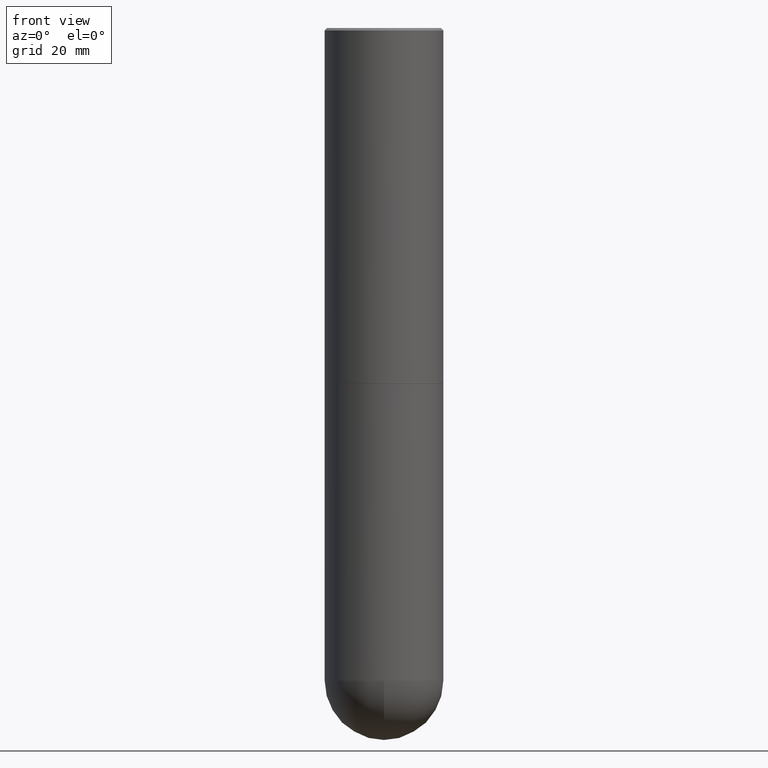
[diagram: clean part render]
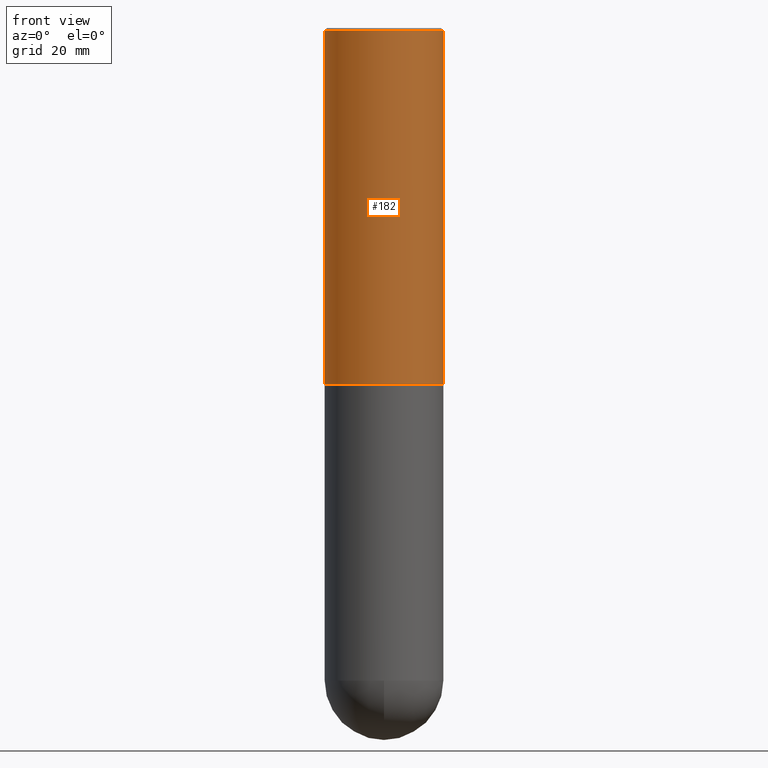
[diagram: same view with one face highlighted and labeled with its STEP entity id]
A machine part, front view. The second image highlights one B-rep face of the part: STEP entity #182.
In plain terms, the highlighted cylindrical surface (partial cylindrical patch) has radius 12.5006 mm, axis along (-0, 0, 1).
Its self-contained STEP definition (entity closure, byte-faithful):
#7 = ORIENTED_EDGE ( 'NONE', *, *, #71, .F. ) ;
#20 = CYLINDRICAL_SURFACE ( 'NONE', #324, 0.4921500000000001984 ) ;
#25 = LINE ( 'NONE', #58, #411 ) ;
#46 = DIRECTION ( 'NONE',  ( -2.445468806185136597E-29, 3.491481338843145583E-15, 1.000000000000000000 ) ) ;
#58 = CARTESIAN_POINT ( 'NONE',  ( -0.4921500000000001984, 3.496936074043334475E-15, -2.420853904668952630E-29 ) ) ;
#71 = EDGE_CURVE ( 'NONE', #315, #81, #287, .T. ) ;
#74 = EDGE_CURVE ( 'NONE', #264, #315, #25, .T. ) ;
#77 = EDGE_CURVE ( 'NONE', #377, #81, #140, .T. ) ;
#81 = VERTEX_POINT ( 'NONE', #132 ) ;
#93 = DIRECTION ( 'NONE',  ( -2.445468806185136877E-29, 3.491481338843145188E-15, 1.000000000000000000 ) ) ;
#98 = DIRECTION ( 'NONE',  ( -2.445468806185136877E-29, 3.491481338843145188E-15, 1.000000000000000000 ) ) ;
#105 = DIRECTION ( 'NONE',  ( -2.445468806185136597E-29, 3.491481338843145583E-15, 1.000000000000000000 ) ) ;
#132 = CARTESIAN_POINT ( 'NONE',  ( 0.4921500000000000319, -3.446223716380123138E-15, -0.02000000000000010797 ) ) ;
#140 = LINE ( 'NONE', #308, #383 ) ;
#150 = DIRECTION ( 'NONE',  ( 1.000000000000000000, -6.982962677686265922E-15, 0.000000000000000000 ) ) ;
#178 = DIRECTION ( 'NONE',  ( 1.000000000000000000, -6.982962677686265922E-15, 0.000000000000000000 ) ) ;
#182 = ADVANCED_FACE ( 'NONE', ( #371 ), #20, .T. ) ;
#189 = CARTESIAN_POINT ( 'NONE',  ( -0.4921500000000003094, -1.690881473276752982E-15, -2.951700000000000212 ) ) ;
#193 = CARTESIAN_POINT ( 'NONE',  ( 0.000000000000000000, 0.000000000000000000, 0.000000000000000000 ) ) ;
#205 = CARTESIAN_POINT ( 'NONE',  ( -0.4921500000000000319, 3.366835455046432873E-15, -0.02000000000000010797 ) ) ;
#212 = AXIS2_PLACEMENT_3D ( 'NONE', #322, #46, #150 ) ;
#245 = DIRECTION ( 'NONE',  ( -2.445468806185136597E-29, 3.491481338843145583E-15, 1.000000000000000000 ) ) ;
#259 = CARTESIAN_POINT ( 'NONE',  ( 4.890937612370299433E-31, -6.982962677686328587E-17, -0.02000000000000010797 ) ) ;
#264 = VERTEX_POINT ( 'NONE', #189 ) ;
#269 = ORIENTED_EDGE ( 'NONE', *, *, #77, .T. ) ;
#271 = ORIENTED_EDGE ( 'NONE', *, *, #305, .T. ) ;
#275 = EDGE_LOOP ( 'NONE', ( #325, #271, #269, #7 ) ) ;
#287 = CIRCLE ( 'NONE', #401, 0.4921500000000000319 ) ;
#305 = EDGE_CURVE ( 'NONE', #264, #377, #392, .T. ) ;
#308 = CARTESIAN_POINT ( 'NONE',  ( 0.4921500000000001984, -3.436665081823297354E-15, 2.399810400207970443E-29 ) ) ;
#315 = VERTEX_POINT ( 'NONE', #205 ) ;
#322 = CARTESIAN_POINT ( 'NONE',  ( 7.218290275216666916E-29, -1.030580546786331359E-14, -2.951700000000000212 ) ) ;
#324 = AXIS2_PLACEMENT_3D ( 'NONE', #193, #245, #395 ) ;
#325 = ORIENTED_EDGE ( 'NONE', *, *, #74, .F. ) ;
#371 = FACE_OUTER_BOUND ( 'NONE', #275, .T. ) ;
#372 = CARTESIAN_POINT ( 'NONE',  ( 0.4921500000000003094, -1.374247054968661252E-14, -2.951700000000000212 ) ) ;
#377 = VERTEX_POINT ( 'NONE', #372 ) ;
#383 = VECTOR ( 'NONE', #98, 39.37007874015748143 ) ;
#392 = CIRCLE ( 'NONE', #212, 0.4921500000000003094 ) ;
#395 = DIRECTION ( 'NONE',  ( 1.000000000000000000, -6.982962677686266711E-15, 4.876176775795935232E-29 ) ) ;
#401 = AXIS2_PLACEMENT_3D ( 'NONE', #259, #105, #178 ) ;
#411 = VECTOR ( 'NONE', #93, 39.37007874015748143 ) ;